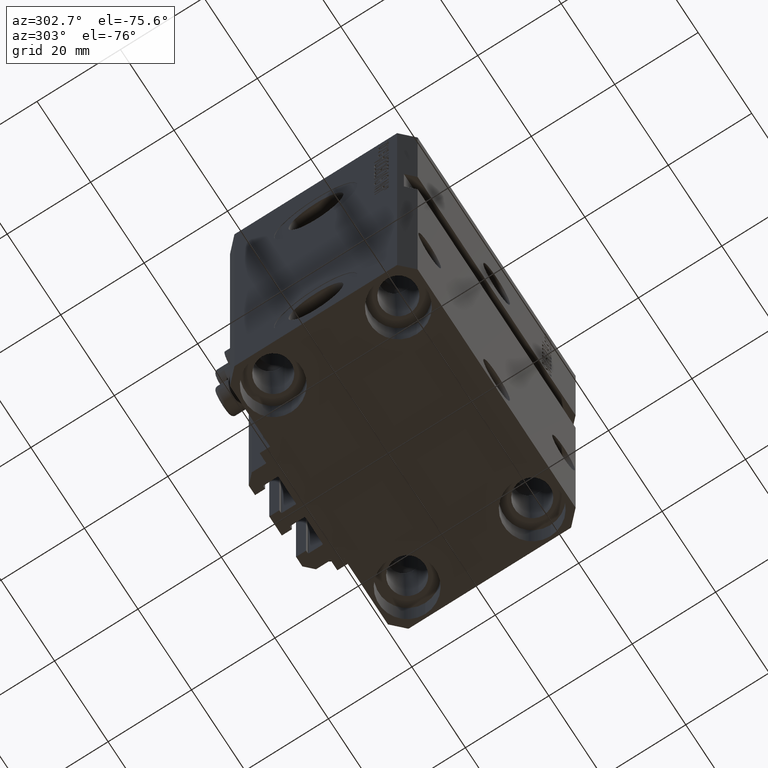
[diagram: clean part render]
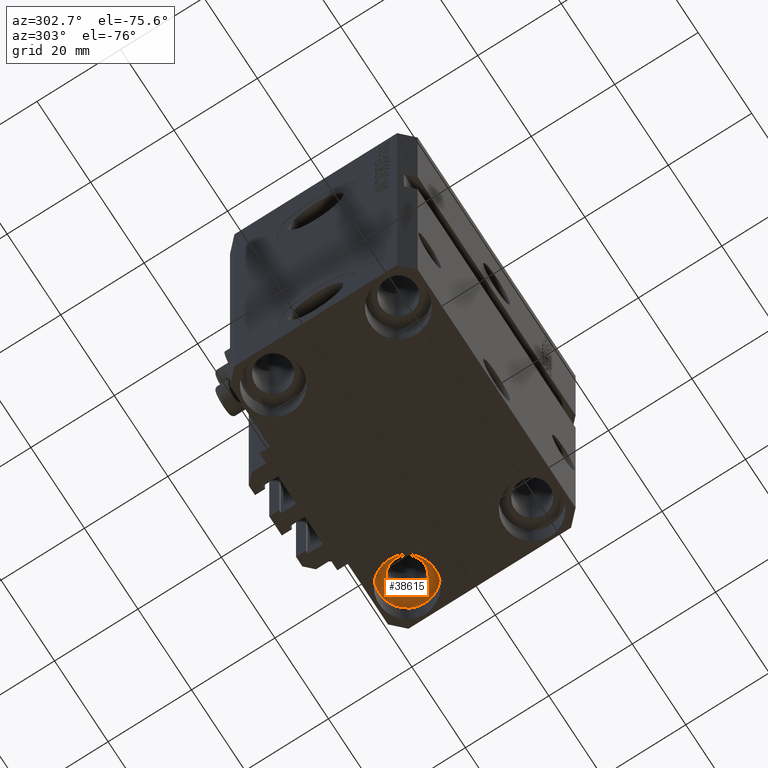
[diagram: same view with one face highlighted and labeled with its STEP entity id]
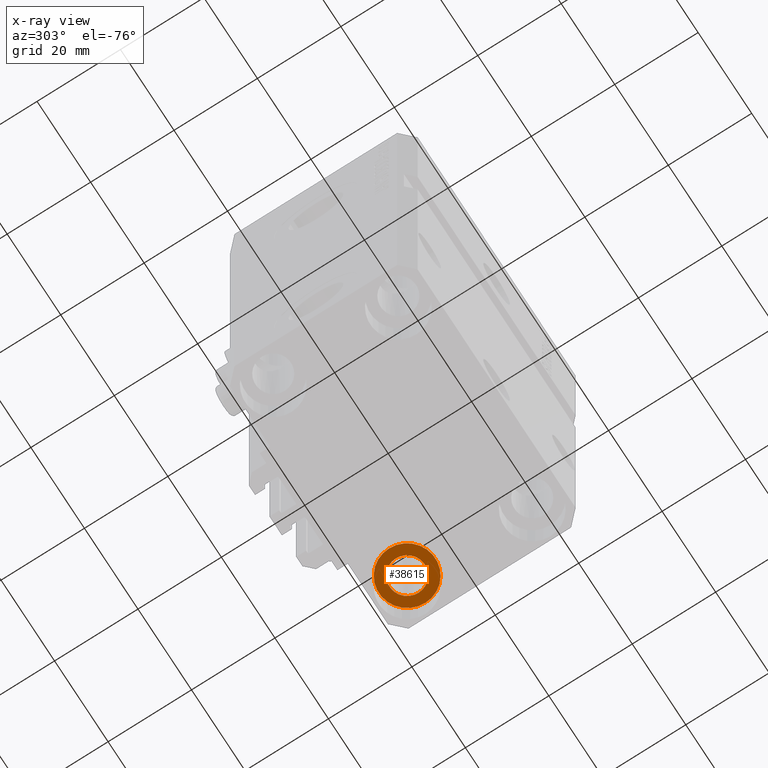
[diagram: x-ray of the same camera — body ghosted, the highlighted face saturated]
A machine part, auxiliary view. The second image highlights one B-rep face of the part: STEP entity #38615.
The next image is the same camera in x-ray: the body ghosted, the highlighted face saturated — about 0% of this face is hidden behind the body in this view.
In plain terms, the highlighted planar face has unit normal (0, 0, -1).
Its self-contained STEP definition (entity closure, byte-faithful):
#316 = CARTESIAN_POINT ( 'NONE',  ( 20.75000000004154899, 15.00000000000000888, -98.00000000000000000 ) ) ;
#1677 = CARTESIAN_POINT ( 'NONE',  ( 24.99999999999999645, 15.00000000000000888, -98.00000000000000000 ) ) ;
#2571 = CARTESIAN_POINT ( 'NONE',  ( 24.99999999999999645, 15.00000000000000888, -98.00000000000000000 ) ) ;
#2846 = AXIS2_PLACEMENT_3D ( 'NONE', #1677, #12437, #16328 ) ;
#5057 = CARTESIAN_POINT ( 'NONE',  ( 29.24999999995844746, 15.00000000000000888, -98.00000000000000000 ) ) ;
#5740 = EDGE_LOOP ( 'NONE', ( #7254, #22139 ) ) ;
#6454 = AXIS2_PLACEMENT_3D ( 'NONE', #33127, #7271, #6774 ) ;
#6774 = DIRECTION ( 'NONE',  ( 1.000000000000000000, 0.000000000000000000, 0.000000000000000000 ) ) ;
#6865 = EDGE_CURVE ( 'NONE', #13863, #40210, #42285, .T. ) ;
#7254 = ORIENTED_EDGE ( 'NONE', *, *, #18394, .F. ) ;
#7271 = DIRECTION ( 'NONE',  ( -0.000000000000000000, -0.000000000000000000, 1.000000000000000000 ) ) ;
#9647 = DIRECTION ( 'NONE',  ( -1.000000000000000000, 0.000000000000000000, 0.000000000000000000 ) ) ;
#12437 = DIRECTION ( 'NONE',  ( -0.000000000000000000, -0.000000000000000000, 1.000000000000000000 ) ) ;
#13552 = PLANE ( 'NONE',  #26416 ) ;
#13863 = VERTEX_POINT ( 'NONE', #32899 ) ;
#14127 = CIRCLE ( 'NONE', #47628, 4.249999999958450125 ) ;
#16328 = DIRECTION ( 'NONE',  ( 1.000000000000000000, 0.000000000000000000, 0.000000000000000000 ) ) ;
#16946 = EDGE_LOOP ( 'NONE', ( #26034, #18533 ) ) ;
#16956 = DIRECTION ( 'NONE',  ( 0.000000000000000000, 0.000000000000000000, -1.000000000000000000 ) ) ;
#17462 = DIRECTION ( 'NONE',  ( 0.000000000000000000, 0.000000000000000000, -1.000000000000000000 ) ) ;
#18394 = EDGE_CURVE ( 'NONE', #37786, #40041, #30868, .T. ) ;
#18533 = ORIENTED_EDGE ( 'NONE', *, *, #6865, .F. ) ;
#21314 = CARTESIAN_POINT ( 'NONE',  ( 24.99999999999999645, 15.00000000000000888, -98.00000000000000000 ) ) ;
#22139 = ORIENTED_EDGE ( 'NONE', *, *, #44554, .F. ) ;
#23886 = CIRCLE ( 'NONE', #2846, 6.749999999958452790 ) ;
#24691 = CARTESIAN_POINT ( 'NONE',  ( 18.25000000004154543, 15.00000000000000888, -98.00000000000000000 ) ) ;
#24794 = FACE_BOUND ( 'NONE', #5740, .T. ) ;
#26034 = ORIENTED_EDGE ( 'NONE', *, *, #29772, .F. ) ;
#26416 = AXIS2_PLACEMENT_3D ( 'NONE', #2571, #17462, #31854 ) ;
#29772 = EDGE_CURVE ( 'NONE', #40210, #13863, #23886, .T. ) ;
#30868 = CIRCLE ( 'NONE', #46433, 4.249999999958450125 ) ;
#31854 = DIRECTION ( 'NONE',  ( 1.000000000000000000, 0.000000000000000000, 0.000000000000000000 ) ) ;
#32526 = DIRECTION ( 'NONE',  ( -1.000000000000000000, 0.000000000000000000, 0.000000000000000000 ) ) ;
#32899 = CARTESIAN_POINT ( 'NONE',  ( 31.74999999995845101, 15.00000000000000888, -98.00000000000000000 ) ) ;
#33127 = CARTESIAN_POINT ( 'NONE',  ( 24.99999999999999645, 15.00000000000000888, -98.00000000000000000 ) ) ;
#35506 = CARTESIAN_POINT ( 'NONE',  ( 24.99999999999999645, 15.00000000000000888, -98.00000000000000000 ) ) ;
#35768 = FACE_OUTER_BOUND ( 'NONE', #16946, .T. ) ;
#37786 = VERTEX_POINT ( 'NONE', #5057 ) ;
#38615 = ADVANCED_FACE ( 'NONE', ( #24794, #35768 ), #13552, .T. ) ;
#39361 = DIRECTION ( 'NONE',  ( 0.000000000000000000, 0.000000000000000000, -1.000000000000000000 ) ) ;
#40041 = VERTEX_POINT ( 'NONE', #316 ) ;
#40210 = VERTEX_POINT ( 'NONE', #24691 ) ;
#42285 = CIRCLE ( 'NONE', #6454, 6.749999999958452790 ) ;
#44554 = EDGE_CURVE ( 'NONE', #40041, #37786, #14127, .T. ) ;
#46433 = AXIS2_PLACEMENT_3D ( 'NONE', #21314, #39361, #32526 ) ;
#47628 = AXIS2_PLACEMENT_3D ( 'NONE', #35506, #16956, #9647 ) ;